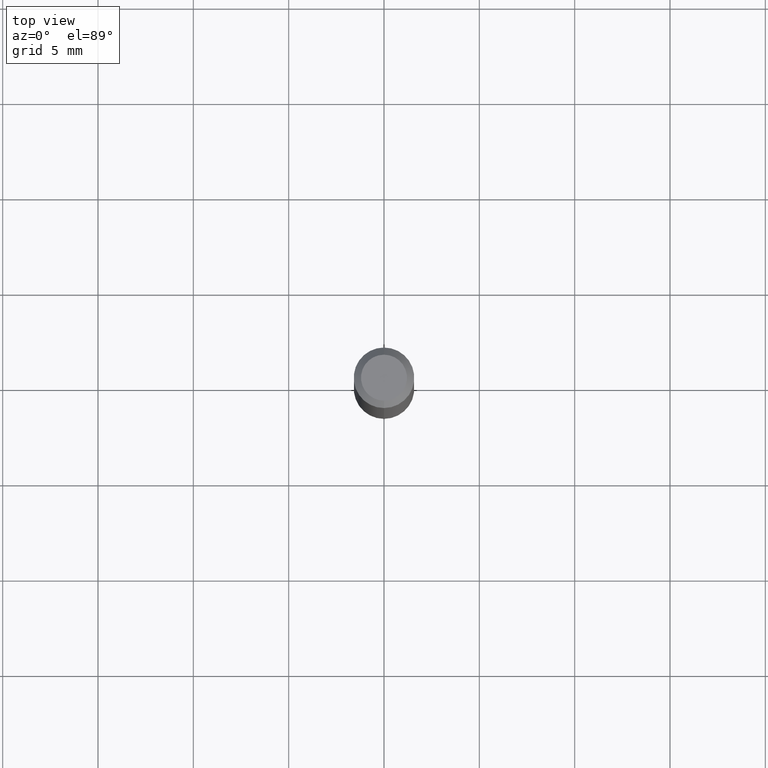
[diagram: clean part render]
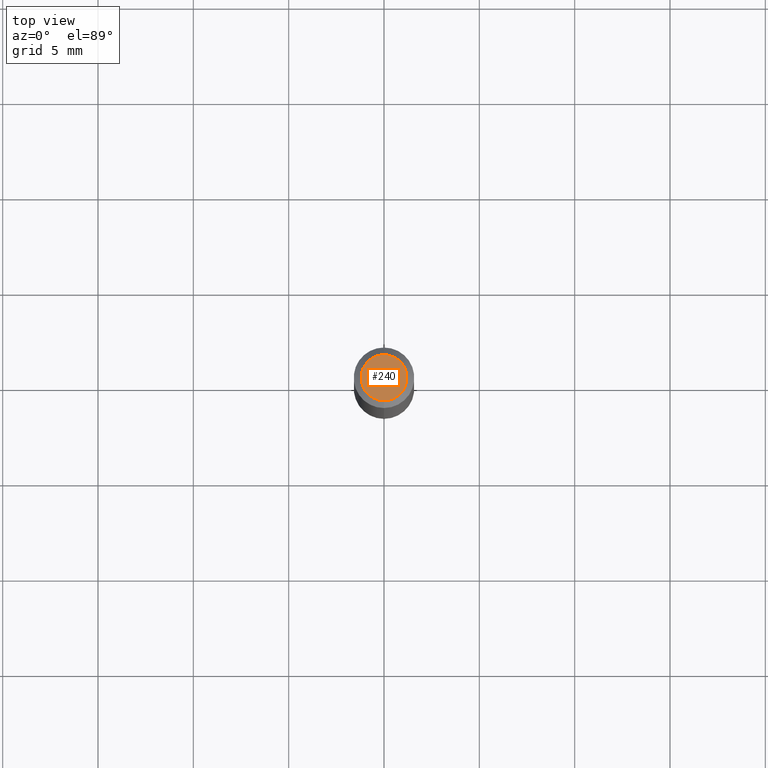
[diagram: same view with one face highlighted and labeled with its STEP entity id]
A machine part, top view. The second image highlights one B-rep face of the part: STEP entity #240.
In plain terms, the highlighted planar face has unit normal (0, -0, -1).
Its self-contained STEP definition (entity closure, byte-faithful):
#4 = CARTESIAN_POINT ( 'NONE',  ( 3.316907271900976096E-16, 0.04749999999999999362, -1.702721195745355787E-16 ) ) ;
#15 = DIRECTION ( 'NONE',  ( -2.445568885019191806E-29, 3.491338020256645256E-15, 1.000000000000000000 ) ) ;
#18 = AXIS2_PLACEMENT_3D ( 'NONE', #505, #409, #331 ) ;
#20 = DIRECTION ( 'NONE',  ( -6.982962677686266711E-15, -1.000000000000000000, 3.491338020256645651E-15 ) ) ;
#26 = CIRCLE ( 'NONE', #64, 0.04749999999999999362 ) ;
#63 = CARTESIAN_POINT ( 'NONE',  ( 3.840629472727447874E-16, 0.04749999999999999362, -1.747056831868805136E-16 ) ) ;
#64 = AXIS2_PLACEMENT_3D ( 'NONE', #299, #15, #20 ) ;
#75 = DIRECTION ( 'NONE',  ( 2.445568885019191245E-29, -3.491338020256645256E-15, -1.000000000000000000 ) ) ;
#76 = VERTEX_POINT ( 'NONE', #63 ) ;
#112 = PLANE ( 'NONE',  #117 ) ;
#113 = ORIENTED_EDGE ( 'NONE', *, *, #116, .T. ) ;
#116 = EDGE_CURVE ( 'NONE', #76, #194, #136, .T. ) ;
#117 = AXIS2_PLACEMENT_3D ( 'NONE', #4, #75, #119 ) ;
#119 = DIRECTION ( 'NONE',  ( 6.982962677686265922E-15, 1.000000000000000000, -3.491338020256645256E-15 ) ) ;
#136 = CIRCLE ( 'NONE', #18, 0.04749999999999999362 ) ;
#142 = ORIENTED_EDGE ( 'NONE', *, *, #182, .T. ) ;
#182 = EDGE_CURVE ( 'NONE', #194, #76, #26, .T. ) ;
#194 = VERTEX_POINT ( 'NONE', #410 ) ;
#240 = ADVANCED_FACE ( 'NONE', ( #245 ), #112, .F. ) ;
#245 = FACE_OUTER_BOUND ( 'NONE', #255, .T. ) ;
#255 = EDGE_LOOP ( 'NONE', ( #113, #142 ) ) ;
#299 = CARTESIAN_POINT ( 'NONE',  ( 2.168517044020812556E-46, -3.095813841001253265E-32, -8.867127224689869875E-18 ) ) ;
#331 = DIRECTION ( 'NONE',  ( -6.982962677686266711E-15, -1.000000000000000000, 3.491338020256645651E-15 ) ) ;
#409 = DIRECTION ( 'NONE',  ( -2.445568885019191806E-29, 3.491338020256645256E-15, 1.000000000000000000 ) ) ;
#410 = CARTESIAN_POINT ( 'NONE',  ( -3.773273898774340269E-16, -0.04749999999999999362, 1.569714287375007739E-16 ) ) ;
#505 = CARTESIAN_POINT ( 'NONE',  ( 2.168517044020812556E-46, -3.095813841001253265E-32, -8.867127224689869875E-18 ) ) ;